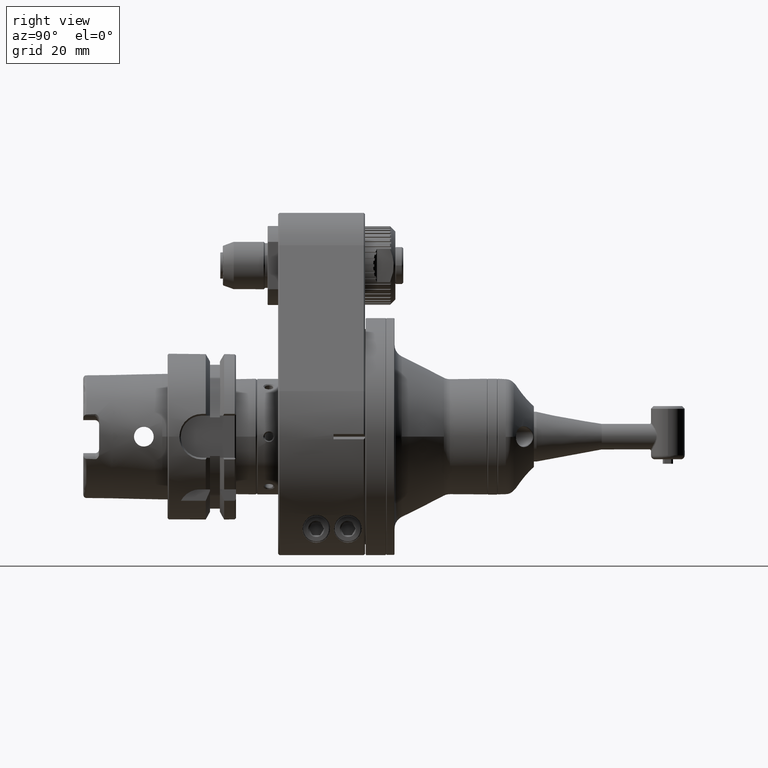
[diagram: clean part render]
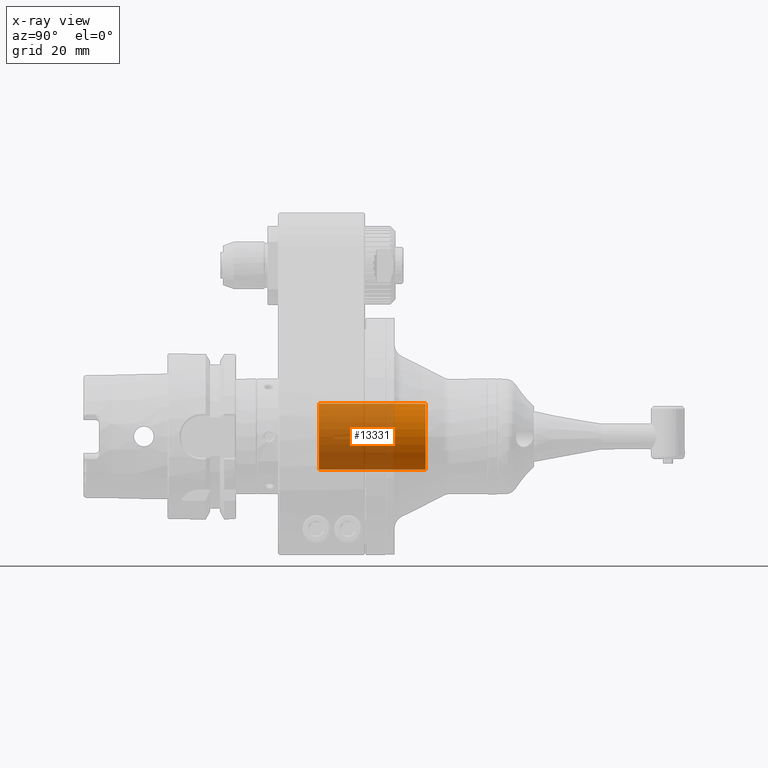
[diagram: x-ray — body ghosted, one internal face saturated and labeled with its STEP entity id]
A machine part, right view, then the same camera in x-ray: the body is ghosted and one INTERNAL B-rep face — a face not visible from any outside direction — is saturated and labeled: STEP entity #13331.
In plain terms, the highlighted cylindrical surface (bore or boss wall) has radius 12.5 mm, axis along (0, -1, 0).
Its self-contained STEP definition (entity closure, byte-faithful):
#1306=LINE('',#27158,#2281);
#2281=VECTOR('',#18091,12.5);
#2598=CYLINDRICAL_SURFACE('',#14669,12.5);
#3346=FACE_OUTER_BOUND('',#4181,.T.);
#4181=EDGE_LOOP('',(#11434,#11435,#11436,#11437,#11438,#11439));
#4926=CIRCLE('',#14666,12.5);
#4927=CIRCLE('',#14667,12.5);
#4929=CIRCLE('',#14670,12.5);
#4930=CIRCLE('',#14671,12.5);
#6082=VERTEX_POINT('',#27151);
#6083=VERTEX_POINT('',#27152);
#6084=VERTEX_POINT('',#27157);
#6085=VERTEX_POINT('',#27159);
#7907=EDGE_CURVE('',#6082,#6083,#4926,.T.);
#7908=EDGE_CURVE('',#6083,#6082,#4927,.T.);
#7910=EDGE_CURVE('',#6083,#6084,#1306,.T.);
#7911=EDGE_CURVE('',#6084,#6085,#4929,.T.);
#7912=EDGE_CURVE('',#6085,#6084,#4930,.T.);
#11434=ORIENTED_EDGE('',*,*,#7907,.F.);
#11435=ORIENTED_EDGE('',*,*,#7908,.F.);
#11436=ORIENTED_EDGE('',*,*,#7910,.T.);
#11437=ORIENTED_EDGE('',*,*,#7911,.T.);
#11438=ORIENTED_EDGE('',*,*,#7912,.T.);
#11439=ORIENTED_EDGE('',*,*,#7910,.F.);
#13331=ADVANCED_FACE('',(#3346),#2598,.T.);
#14666=AXIS2_PLACEMENT_3D('',#27153,#18083,#18084);
#14667=AXIS2_PLACEMENT_3D('',#27154,#18085,#18086);
#14669=AXIS2_PLACEMENT_3D('',#27156,#18089,#18090);
#14670=AXIS2_PLACEMENT_3D('',#27160,#18092,#18093);
#14671=AXIS2_PLACEMENT_3D('',#27161,#18094,#18095);
#18083=DIRECTION('center_axis',(0.,-1.,0.));
#18084=DIRECTION('ref_axis',(0.,0.,1.));
#18085=DIRECTION('center_axis',(0.,-1.,0.));
#18086=DIRECTION('ref_axis',(0.,0.,1.));
#18089=DIRECTION('center_axis',(0.,-1.,0.));
#18090=DIRECTION('ref_axis',(-1.,0.,0.));
#18091=DIRECTION('',(0.,1.,0.));
#18092=DIRECTION('center_axis',(0.,-1.,0.));
#18093=DIRECTION('ref_axis',(-1.,0.,0.));
#18094=DIRECTION('center_axis',(0.,-1.,0.));
#18095=DIRECTION('ref_axis',(-1.,0.,0.));
#27151=CARTESIAN_POINT('',(1.17753558635042E-14,7.5,12.5));
#27152=CARTESIAN_POINT('',(12.5,7.5,1.53080849893419E-15));
#27153=CARTESIAN_POINT('Origin',(0.,7.5,0.));
#27154=CARTESIAN_POINT('Origin',(0.,7.5,0.));
#27156=CARTESIAN_POINT('Origin',(1.108182888548E-14,90.49,0.));
#27157=CARTESIAN_POINT('',(12.5,48.,1.53080849893419E-15));
#27158=CARTESIAN_POINT('',(12.5,90.49,1.53080849893419E-15));
#27159=CARTESIAN_POINT('',(-1.53080849893419E-15,48.,12.5));
#27160=CARTESIAN_POINT('Origin',(0.,48.,0.));
#27161=CARTESIAN_POINT('Origin',(0.,48.,0.));